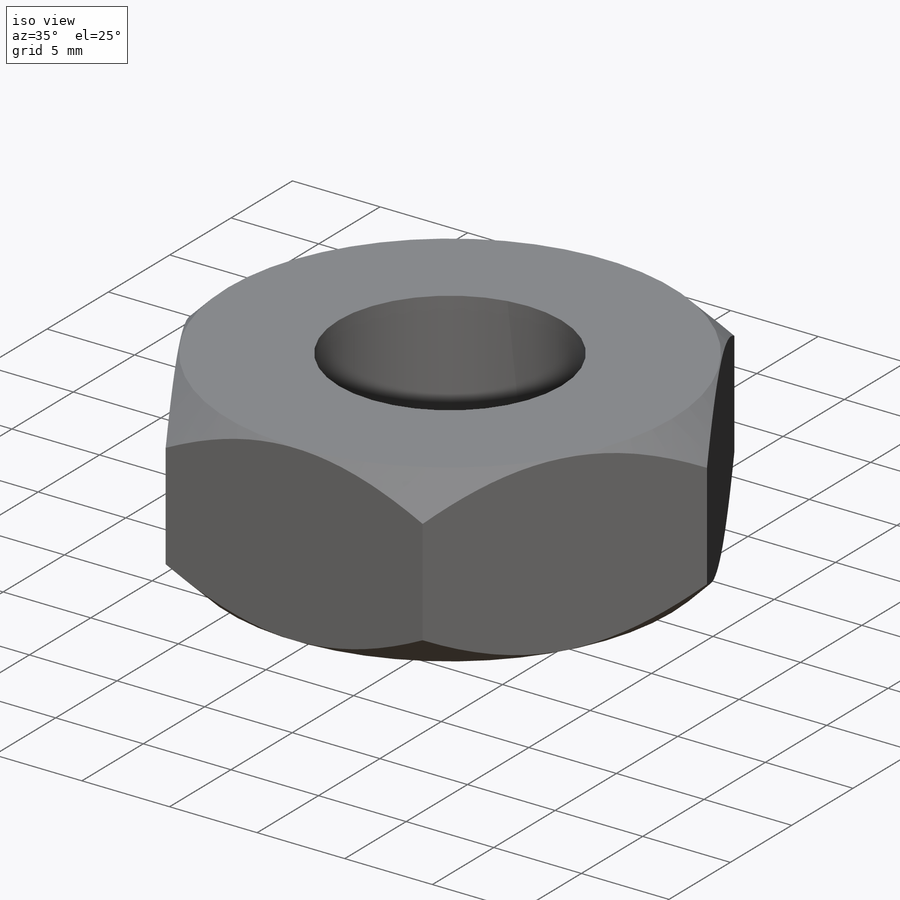
[diagram: iso view]
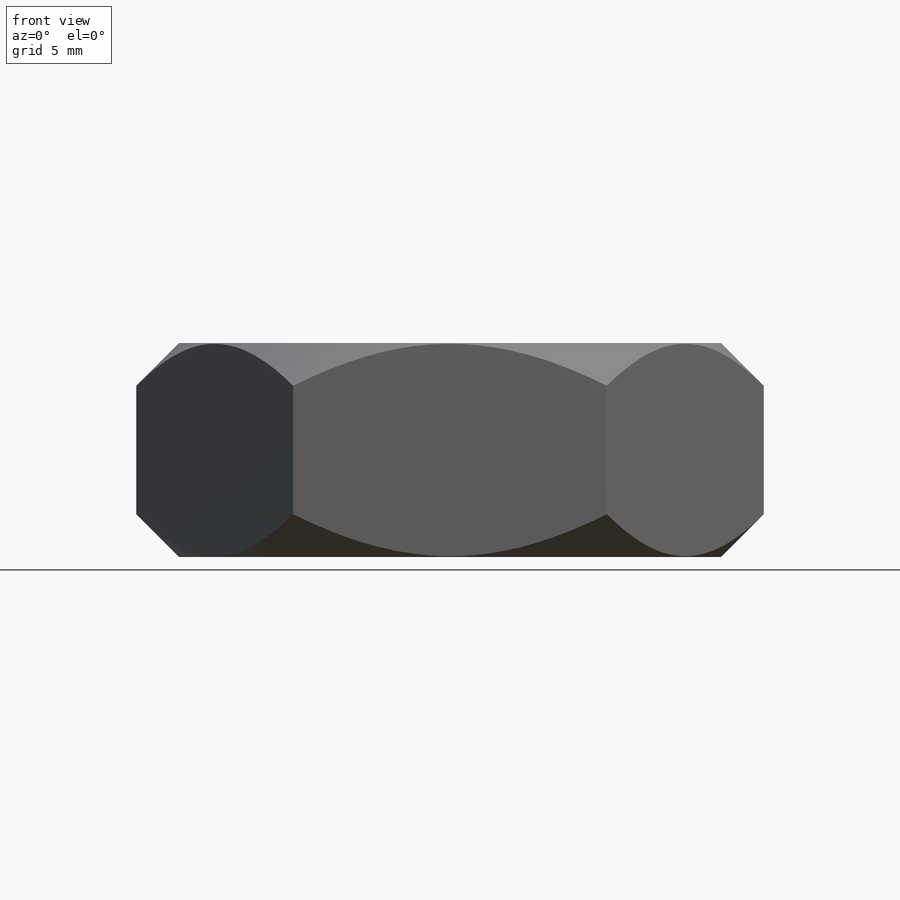
[diagram: front view]
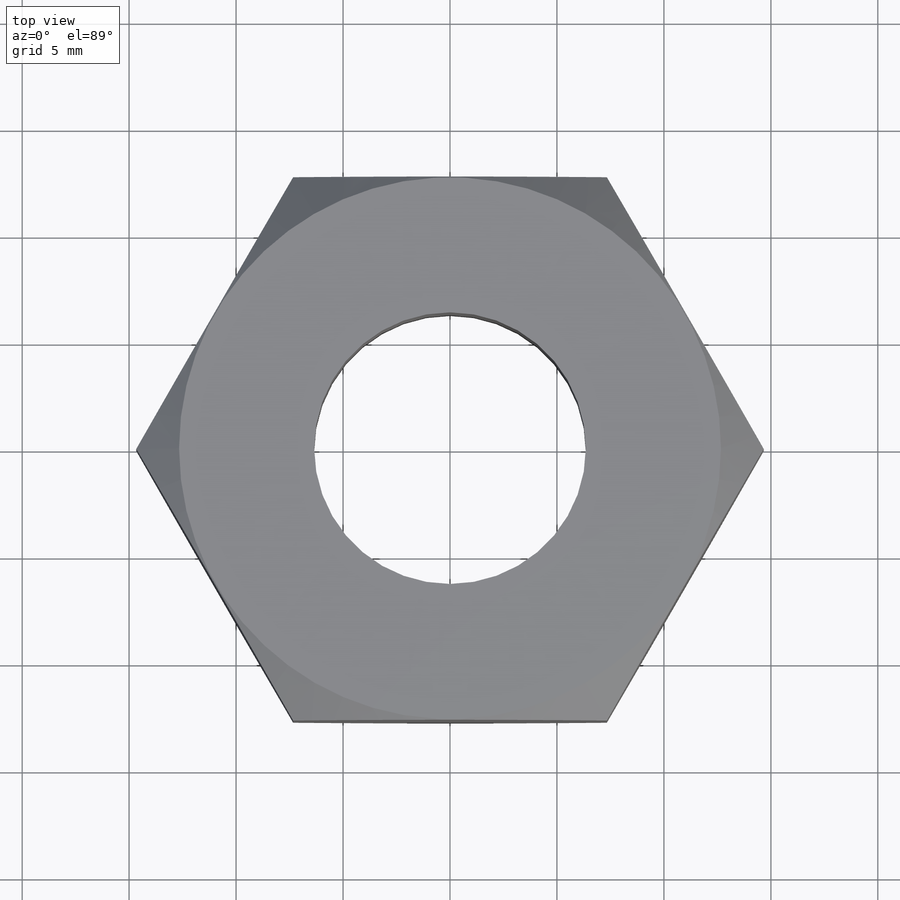
[diagram: top view]
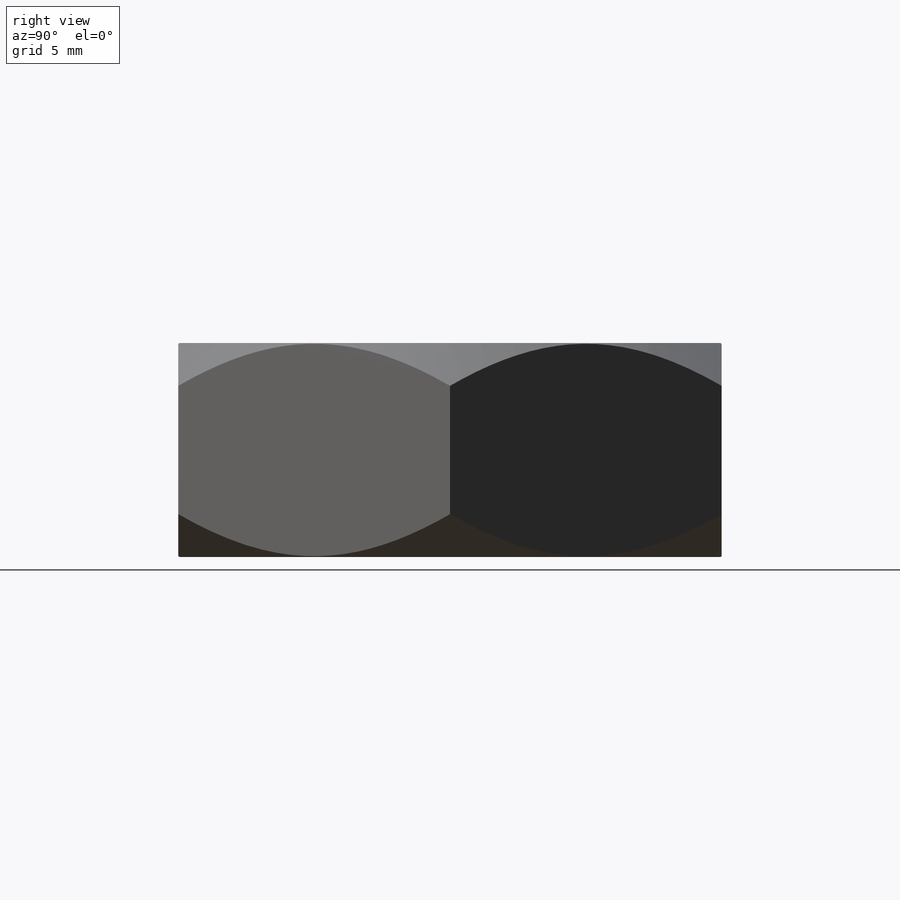
[diagram: right view]
SOLIDWORKS PART (.sldprt)
format: sldprt  version: not decoded by parser v0  size: 168,448 bytes
history: native  units: mm
features: plane x4, sketch x3, material x1, extrude x1, cut_revolve x1, mirror x1 (+9 scaffold rows collapsed)
feature tree (20):
  scaffold x9  (default folders/planes/origin — collapsed)
  material  "Material <sin especificar>"
  plane  "Alzado"
  plane  "Planta"
  plane  "Vista lateral"
  sketch  "Croquis1"  dims[D2=12.7mm D1=25.4mm]
  extrude  "Saliente-Extruir1"  Depth=10mm
  sketch  "Croquis2"  dims[c1.D1=2.3128mm c2.D1=45.0deg c2.D2=2.0mm]
  cut_revolve  "Cortar-Revolución1"  Angle=360deg
  sketch  "Croquis3"  dims[D1=5.0mm]
  plane  "Plano1"
  mirror  "Simetría1"
decode coverage: 5 of 6 modeling features carry decoded parameters
note: suppression state not decoded; provenance and decode notes live in map.json
